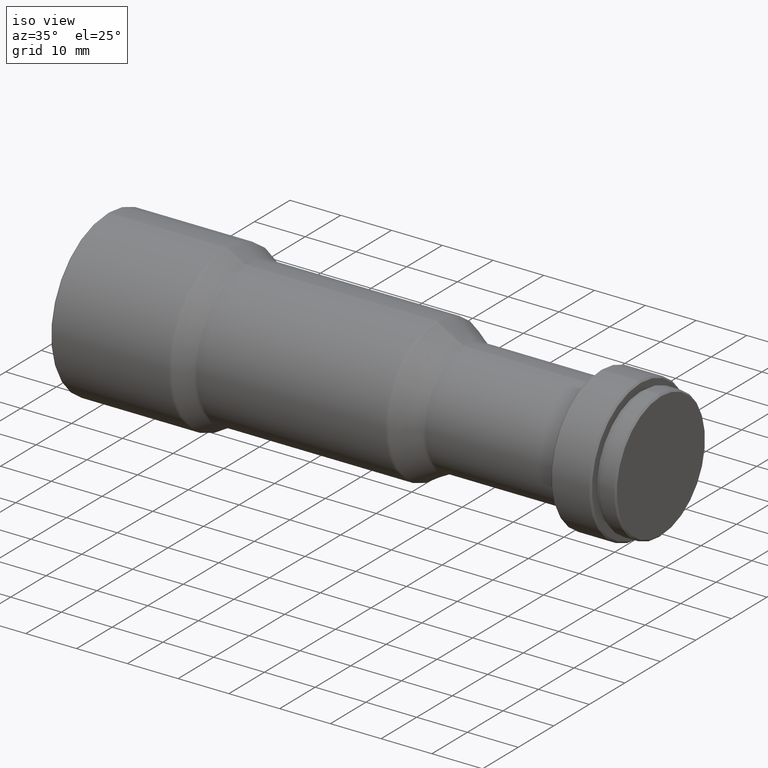
[diagram: clean part render]
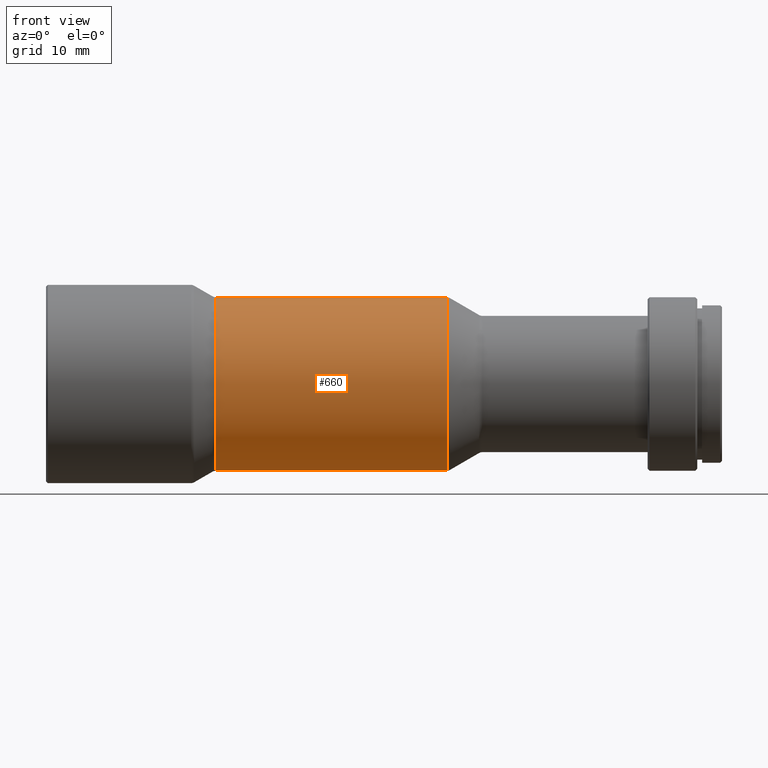
[diagram: tour spotlight — one face highlighted and labeled with its STEP entity id]
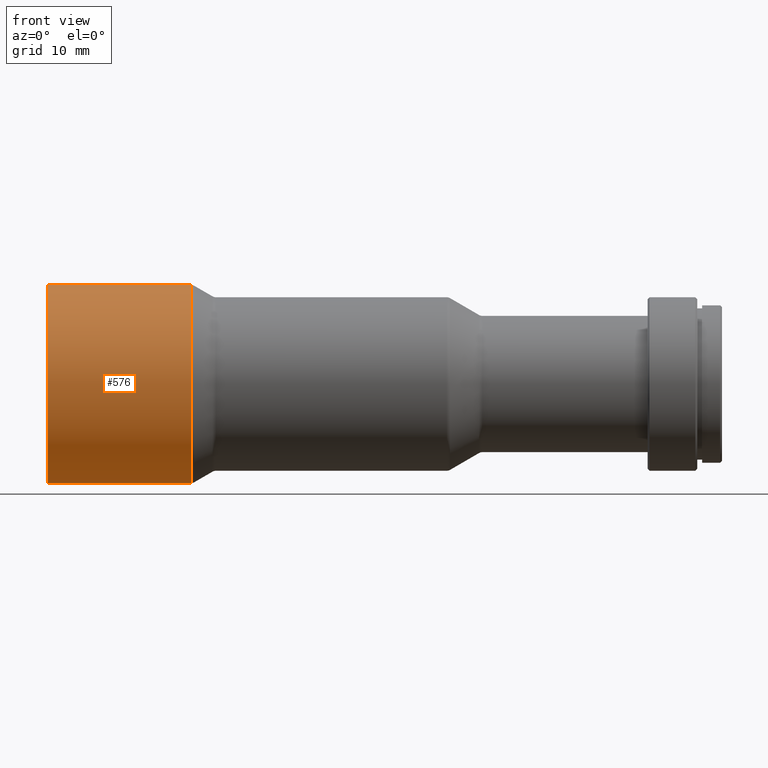
[diagram: tour spotlight — one face highlighted and labeled with its STEP entity id]
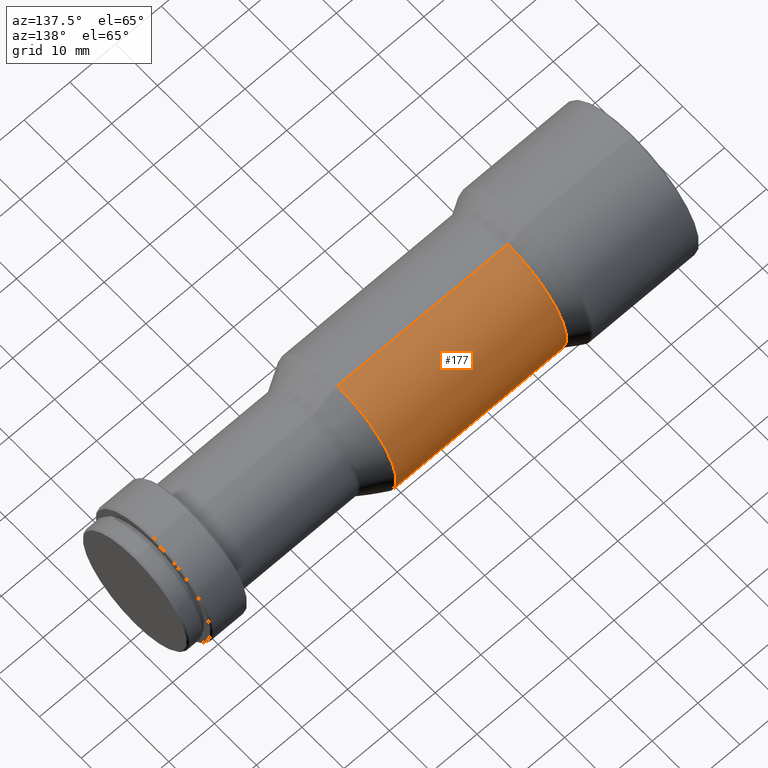
[diagram: tour spotlight — one face highlighted and labeled with its STEP entity id]
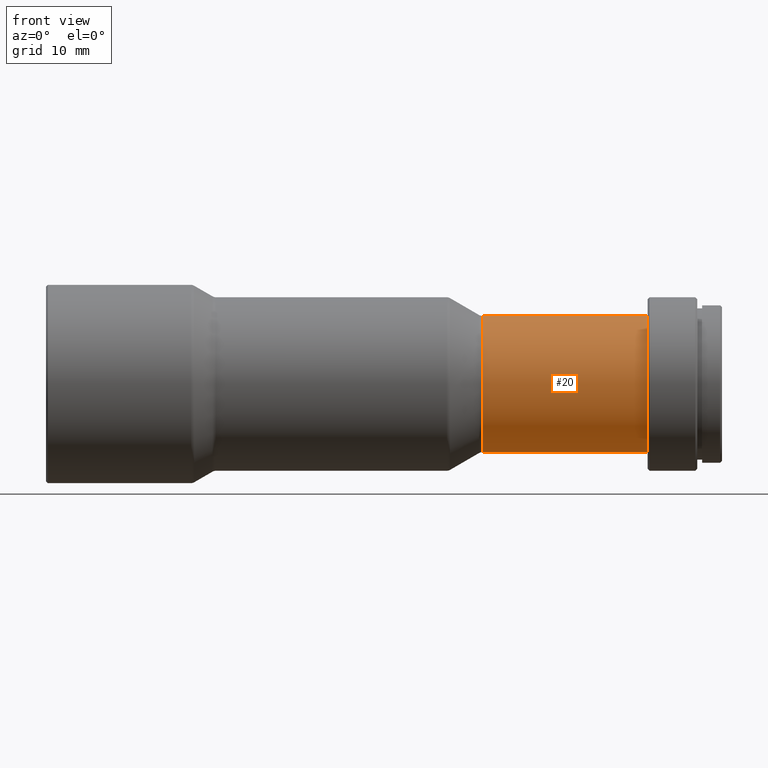
[diagram: tour spotlight — one face highlighted and labeled with its STEP entity id]
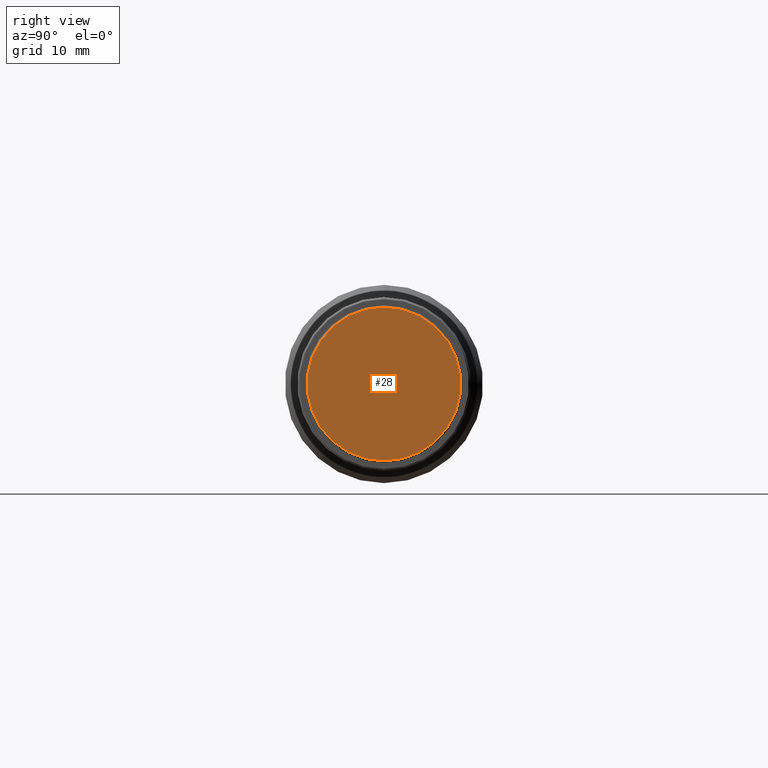
[diagram: tour spotlight — one face highlighted and labeled with its STEP entity id]
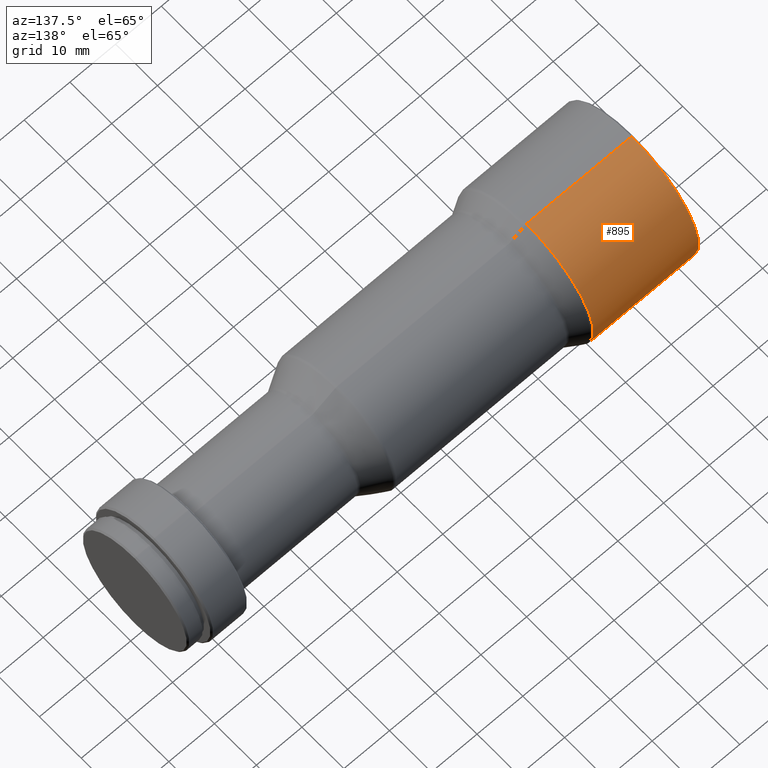
[diagram: tour spotlight — one face highlighted and labeled with its STEP entity id]
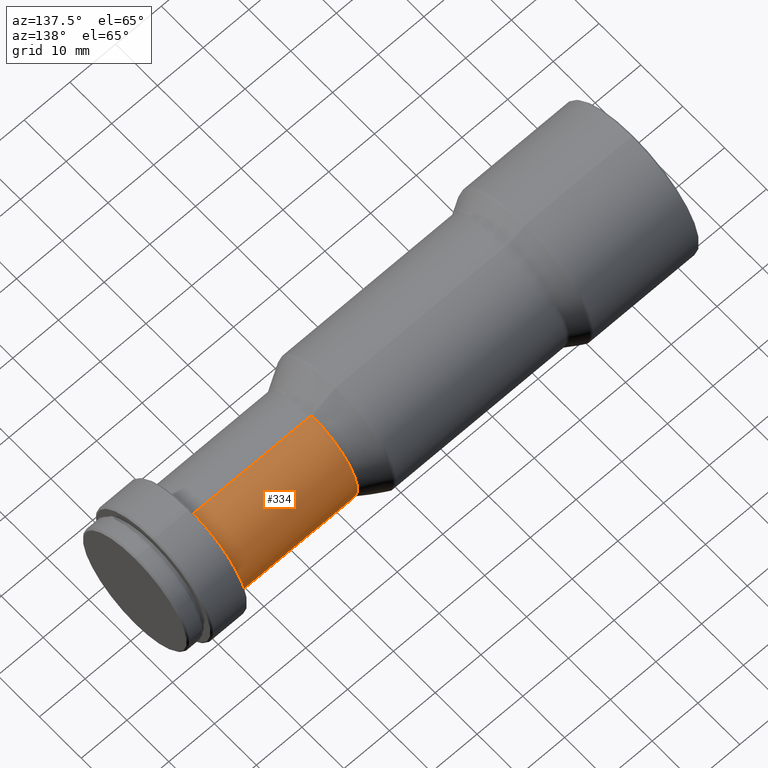
[diagram: tour spotlight — one face highlighted and labeled with its STEP entity id]
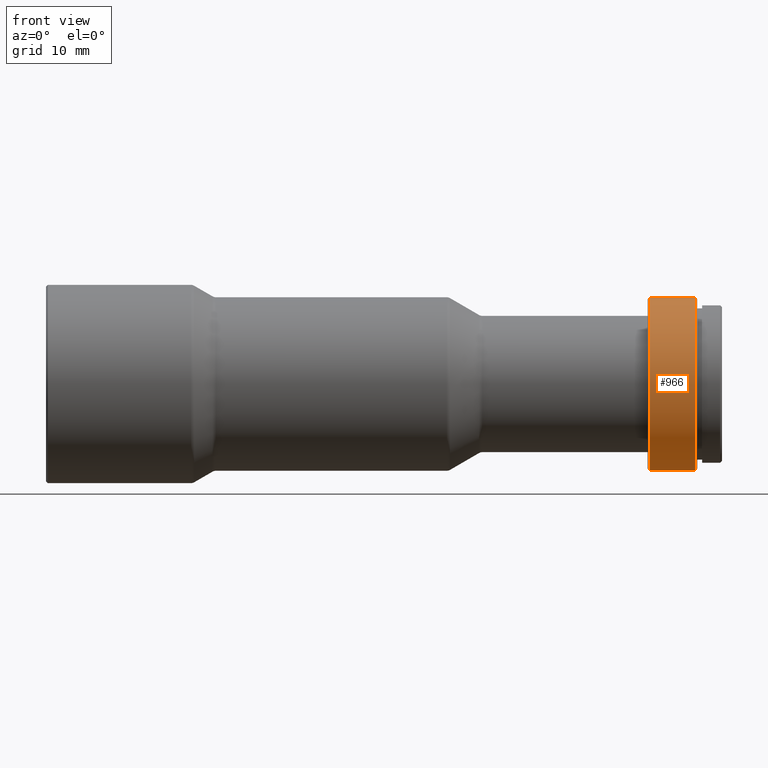
[diagram: tour spotlight — one face highlighted and labeled with its STEP entity id]
A machine part: a face-by-face anatomy tour. The part has 37 B-rep faces; the first image is the clean iso view, then the 8 largest visible faces are spotlighted one at a time (largest first), each with its STEP entity span.

Face 1 — front view, entity #660. In plain terms, the highlighted cylindrical surface (partial cylindrical patch) has radius 14 mm, axis along (-1, -0, -0).
Definition (entity closure, byte-faithful):
#17 = AXIS2_PLACEMENT_3D ( 'NONE', #161, #253, #811 ) ;
#41 = ORIENTED_EDGE ( 'NONE', *, *, #319, .T. ) ;
#42 = CYLINDRICAL_SURFACE ( 'NONE', #796, 14.00000000000000200 ) ;
#87 = CARTESIAN_POINT ( 'NONE',  ( 64.70000000000000300, 0.0000000000000000000, 14.00000000000000000 ) ) ;
#109 = EDGE_CURVE ( 'NONE', #353, #795, #630, .T. ) ;
#140 = CARTESIAN_POINT ( 'NONE',  ( 27.39999999999999900, 1.722709096827417100E-015, -14.00000000000000200 ) ) ;
#157 = CARTESIAN_POINT ( 'NONE',  ( 0.0000000000000000000, 1.714505518806294800E-015, -14.00000000000000200 ) ) ;
#161 = CARTESIAN_POINT ( 'NONE',  ( 27.39999999999999900, 0.0000000000000000000, 0.0000000000000000000 ) ) ;
#171 = VERTEX_POINT ( 'NONE', #140 ) ;
#197 = EDGE_LOOP ( 'NONE', ( #235, #330, #41, #723 ) ) ;
#232 = DIRECTION ( 'NONE',  ( 0.0000000000000000000, 0.0000000000000000000, 1.000000000000000000 ) ) ;
#235 = ORIENTED_EDGE ( 'NONE', *, *, #592, .F. ) ;
#253 = DIRECTION ( 'NONE',  ( -1.000000000000000000, -0.0000000000000000000, -0.0000000000000000000 ) ) ;
#255 = CARTESIAN_POINT ( 'NONE',  ( 64.70000000000000300, 0.0000000000000000000, 0.0000000000000000000 ) ) ;
#257 = DIRECTION ( 'NONE',  ( -1.000000000000000000, -0.0000000000000000000, -0.0000000000000000000 ) ) ;
#319 = EDGE_CURVE ( 'NONE', #795, #650, #762, .T. ) ;
#330 = ORIENTED_EDGE ( 'NONE', *, *, #109, .T. ) ;
#353 = VERTEX_POINT ( 'NONE', #831 ) ;
#471 = AXIS2_PLACEMENT_3D ( 'NONE', #255, #954, #569 ) ;
#483 = CIRCLE ( 'NONE', #17, 14.00000000000000200 ) ;
#510 = CARTESIAN_POINT ( 'NONE',  ( 0.0000000000000000000, 0.0000000000000000000, 14.00000000000000200 ) ) ;
#549 = VECTOR ( 'NONE', #257, 1000.000000000000000 ) ;
#569 = DIRECTION ( 'NONE',  ( 0.0000000000000000000, 0.0000000000000000000, 1.000000000000000000 ) ) ;
#592 = EDGE_CURVE ( 'NONE', #353, #171, #887, .T. ) ;
#629 = DIRECTION ( 'NONE',  ( -1.000000000000000000, -0.0000000000000000000, -0.0000000000000000000 ) ) ;
#630 = CIRCLE ( 'NONE', #471, 14.00000000000000000 ) ;
#637 = CARTESIAN_POINT ( 'NONE',  ( 27.39999999999999900, 0.0000000000000000000, 14.00000000000000200 ) ) ;
#650 = VERTEX_POINT ( 'NONE', #637 ) ;
#660 = ADVANCED_FACE ( 'NONE', ( #953 ), #42, .T. ) ;
#714 = CARTESIAN_POINT ( 'NONE',  ( 0.0000000000000000000, 0.0000000000000000000, 0.0000000000000000000 ) ) ;
#723 = ORIENTED_EDGE ( 'NONE', *, *, #847, .F. ) ;
#762 = LINE ( 'NONE', #510, #549 ) ;
#795 = VERTEX_POINT ( 'NONE', #87 ) ;
#796 = AXIS2_PLACEMENT_3D ( 'NONE', #714, #629, #232 ) ;
#805 = DIRECTION ( 'NONE',  ( -1.000000000000000000, -0.0000000000000000000, -0.0000000000000000000 ) ) ;
#811 = DIRECTION ( 'NONE',  ( 0.0000000000000000000, 0.0000000000000000000, 1.000000000000000000 ) ) ;
#831 = CARTESIAN_POINT ( 'NONE',  ( 64.70000000000000300, 1.714505518806294600E-015, -14.00000000000000000 ) ) ;
#847 = EDGE_CURVE ( 'NONE', #171, #650, #483, .T. ) ;
#887 = LINE ( 'NONE', #157, #1023 ) ;
#953 = FACE_OUTER_BOUND ( 'NONE', #197, .T. ) ;
#954 = DIRECTION ( 'NONE',  ( -1.000000000000000000, -0.0000000000000000000, -0.0000000000000000000 ) ) ;
#1023 = VECTOR ( 'NONE', #805, 1000.000000000000000 ) ;

Face 2 — front view, entity #576. In plain terms, the highlighted cylindrical surface (partial cylindrical patch) has radius 16 mm, axis along (-1, -0, -0).
Definition (entity closure, byte-faithful):
#54 = VERTEX_POINT ( 'NONE', #116 ) ;
#99 = AXIS2_PLACEMENT_3D ( 'NONE', #940, #873, #304 ) ;
#111 = EDGE_CURVE ( 'NONE', #843, #821, #424, .T. ) ;
#116 = CARTESIAN_POINT ( 'NONE',  ( 23.39999999999999900, 0.0000000000000000000, 16.00000000000000000 ) ) ;
#179 = DIRECTION ( 'NONE',  ( 0.0000000000000000000, 0.0000000000000000000, 1.000000000000000000 ) ) ;
#191 = VECTOR ( 'NONE', #387, 1000.000000000000000 ) ;
#276 = LINE ( 'NONE', #633, #191 ) ;
#304 = DIRECTION ( 'NONE',  ( 0.0000000000000000000, 0.0000000000000000000, 1.000000000000000000 ) ) ;
#365 = EDGE_CURVE ( 'NONE', #843, #54, #804, .T. ) ;
#387 = DIRECTION ( 'NONE',  ( -1.000000000000000000, -0.0000000000000000000, -0.0000000000000000000 ) ) ;
#394 = DIRECTION ( 'NONE',  ( -1.000000000000000000, -0.0000000000000000000, -0.0000000000000000000 ) ) ;
#419 = DIRECTION ( 'NONE',  ( -1.000000000000000000, -0.0000000000000000000, -0.0000000000000000000 ) ) ;
#424 = LINE ( 'NONE', #891, #835 ) ;
#448 = CYLINDRICAL_SURFACE ( 'NONE', #99, 16.00000000000000000 ) ;
#514 = CIRCLE ( 'NONE', #523, 16.00000000000000000 ) ;
#523 = AXIS2_PLACEMENT_3D ( 'NONE', #622, #394, #1011 ) ;
#545 = ORIENTED_EDGE ( 'NONE', *, *, #111, .F. ) ;
#551 = EDGE_CURVE ( 'NONE', #821, #562, #514, .T. ) ;
#558 = CARTESIAN_POINT ( 'NONE',  ( 23.39999999999999900, 1.959434878635765100E-015, -16.00000000000000000 ) ) ;
#562 = VERTEX_POINT ( 'NONE', #699 ) ;
#576 = ADVANCED_FACE ( 'NONE', ( #828 ), #448, .T. ) ;
#583 = CARTESIAN_POINT ( 'NONE',  ( 23.39999999999999900, 0.0000000000000000000, 0.0000000000000000000 ) ) ;
#590 = DIRECTION ( 'NONE',  ( -1.000000000000000000, -0.0000000000000000000, -0.0000000000000000000 ) ) ;
#622 = CARTESIAN_POINT ( 'NONE',  ( 0.2999999999999999900, 0.0000000000000000000, 0.0000000000000000000 ) ) ;
#633 = CARTESIAN_POINT ( 'NONE',  ( 0.0000000000000000000, 0.0000000000000000000, 16.00000000000000000 ) ) ;
#640 = CARTESIAN_POINT ( 'NONE',  ( 0.2999999999999999900, 0.0000000000000000000, -16.00000000000000000 ) ) ;
#666 = EDGE_CURVE ( 'NONE', #54, #562, #276, .T. ) ;
#682 = ORIENTED_EDGE ( 'NONE', *, *, #365, .T. ) ;
#699 = CARTESIAN_POINT ( 'NONE',  ( 0.2999999999999999900, 1.959434878635765100E-015, 16.00000000000000000 ) ) ;
#804 = CIRCLE ( 'NONE', #993, 16.00000000000000000 ) ;
#806 = ORIENTED_EDGE ( 'NONE', *, *, #666, .T. ) ;
#821 = VERTEX_POINT ( 'NONE', #640 ) ;
#828 = FACE_OUTER_BOUND ( 'NONE', #990, .T. ) ;
#835 = VECTOR ( 'NONE', #419, 1000.000000000000000 ) ;
#843 = VERTEX_POINT ( 'NONE', #558 ) ;
#873 = DIRECTION ( 'NONE',  ( -1.000000000000000000, -0.0000000000000000000, -0.0000000000000000000 ) ) ;
#889 = ORIENTED_EDGE ( 'NONE', *, *, #551, .F. ) ;
#891 = CARTESIAN_POINT ( 'NONE',  ( 0.0000000000000000000, 1.959434878635765100E-015, -16.00000000000000000 ) ) ;
#940 = CARTESIAN_POINT ( 'NONE',  ( 0.0000000000000000000, 0.0000000000000000000, 0.0000000000000000000 ) ) ;
#990 = EDGE_LOOP ( 'NONE', ( #545, #682, #806, #889 ) ) ;
#993 = AXIS2_PLACEMENT_3D ( 'NONE', #583, #590, #179 ) ;
#1011 = DIRECTION ( 'NONE',  ( 0.0000000000000000000, 0.0000000000000000000, 1.000000000000000000 ) ) ;

Face 3 — auxiliary view, entity #177. In plain terms, the highlighted cylindrical surface (partial cylindrical patch) has radius 14 mm, axis along (-1, -0, -0).
Definition (entity closure, byte-faithful):
#5 = ORIENTED_EDGE ( 'NONE', *, *, #374, .T. ) ;
#27 = CARTESIAN_POINT ( 'NONE',  ( 64.70000000000000300, 0.0000000000000000000, 0.0000000000000000000 ) ) ;
#70 = EDGE_CURVE ( 'NONE', #650, #171, #607, .T. ) ;
#87 = CARTESIAN_POINT ( 'NONE',  ( 64.70000000000000300, 0.0000000000000000000, 14.00000000000000000 ) ) ;
#133 = FACE_OUTER_BOUND ( 'NONE', #635, .T. ) ;
#140 = CARTESIAN_POINT ( 'NONE',  ( 27.39999999999999900, 1.722709096827417100E-015, -14.00000000000000200 ) ) ;
#157 = CARTESIAN_POINT ( 'NONE',  ( 0.0000000000000000000, 1.714505518806294800E-015, -14.00000000000000200 ) ) ;
#171 = VERTEX_POINT ( 'NONE', #140 ) ;
#177 = ADVANCED_FACE ( 'NONE', ( #133 ), #957, .T. ) ;
#205 = CARTESIAN_POINT ( 'NONE',  ( 27.39999999999999900, 0.0000000000000000000, 0.0000000000000000000 ) ) ;
#222 = AXIS2_PLACEMENT_3D ( 'NONE', #205, #676, #681 ) ;
#228 = CARTESIAN_POINT ( 'NONE',  ( 0.0000000000000000000, 0.0000000000000000000, 0.0000000000000000000 ) ) ;
#257 = DIRECTION ( 'NONE',  ( -1.000000000000000000, -0.0000000000000000000, -0.0000000000000000000 ) ) ;
#295 = CIRCLE ( 'NONE', #557, 14.00000000000000000 ) ;
#319 = EDGE_CURVE ( 'NONE', #795, #650, #762, .T. ) ;
#346 = ORIENTED_EDGE ( 'NONE', *, *, #70, .F. ) ;
#353 = VERTEX_POINT ( 'NONE', #831 ) ;
#374 = EDGE_CURVE ( 'NONE', #795, #353, #295, .T. ) ;
#510 = CARTESIAN_POINT ( 'NONE',  ( 0.0000000000000000000, 0.0000000000000000000, 14.00000000000000200 ) ) ;
#549 = VECTOR ( 'NONE', #257, 1000.000000000000000 ) ;
#557 = AXIS2_PLACEMENT_3D ( 'NONE', #27, #653, #663 ) ;
#592 = EDGE_CURVE ( 'NONE', #353, #171, #887, .T. ) ;
#607 = CIRCLE ( 'NONE', #222, 14.00000000000000200 ) ;
#635 = EDGE_LOOP ( 'NONE', ( #5, #916, #346, #665 ) ) ;
#637 = CARTESIAN_POINT ( 'NONE',  ( 27.39999999999999900, 0.0000000000000000000, 14.00000000000000200 ) ) ;
#650 = VERTEX_POINT ( 'NONE', #637 ) ;
#653 = DIRECTION ( 'NONE',  ( -1.000000000000000000, -0.0000000000000000000, -0.0000000000000000000 ) ) ;
#663 = DIRECTION ( 'NONE',  ( 0.0000000000000000000, 0.0000000000000000000, 1.000000000000000000 ) ) ;
#665 = ORIENTED_EDGE ( 'NONE', *, *, #319, .F. ) ;
#676 = DIRECTION ( 'NONE',  ( -1.000000000000000000, -0.0000000000000000000, -0.0000000000000000000 ) ) ;
#681 = DIRECTION ( 'NONE',  ( 0.0000000000000000000, 0.0000000000000000000, 1.000000000000000000 ) ) ;
#762 = LINE ( 'NONE', #510, #549 ) ;
#795 = VERTEX_POINT ( 'NONE', #87 ) ;
#805 = DIRECTION ( 'NONE',  ( -1.000000000000000000, -0.0000000000000000000, -0.0000000000000000000 ) ) ;
#831 = CARTESIAN_POINT ( 'NONE',  ( 64.70000000000000300, 1.714505518806294600E-015, -14.00000000000000000 ) ) ;
#887 = LINE ( 'NONE', #157, #1023 ) ;
#916 = ORIENTED_EDGE ( 'NONE', *, *, #592, .T. ) ;
#927 = AXIS2_PLACEMENT_3D ( 'NONE', #228, #938, #928 ) ;
#928 = DIRECTION ( 'NONE',  ( 0.0000000000000000000, 0.0000000000000000000, 1.000000000000000000 ) ) ;
#938 = DIRECTION ( 'NONE',  ( -1.000000000000000000, -0.0000000000000000000, -0.0000000000000000000 ) ) ;
#957 = CYLINDRICAL_SURFACE ( 'NONE', #927, 14.00000000000000200 ) ;
#1023 = VECTOR ( 'NONE', #805, 1000.000000000000000 ) ;

Face 4 — front view, entity #20. In plain terms, the highlighted cylindrical surface (partial cylindrical patch) has radius 11 mm, axis along (-1, -0, -0).
Definition (entity closure, byte-faithful):
#12 = CARTESIAN_POINT ( 'NONE',  ( 97.09999999999999400, 0.0000000000000000000, 11.00000000000000000 ) ) ;
#14 = EDGE_CURVE ( 'NONE', #404, #307, #269, .T. ) ;
#20 = ADVANCED_FACE ( 'NONE', ( #107 ), #351, .T. ) ;
#32 = DIRECTION ( 'NONE',  ( -1.000000000000000000, -0.0000000000000000000, -0.0000000000000000000 ) ) ;
#45 = AXIS2_PLACEMENT_3D ( 'NONE', #239, #68, #465 ) ;
#68 = DIRECTION ( 'NONE',  ( -1.000000000000000000, -0.0000000000000000000, -0.0000000000000000000 ) ) ;
#78 = ORIENTED_EDGE ( 'NONE', *, *, #692, .F. ) ;
#107 = FACE_OUTER_BOUND ( 'NONE', #259, .T. ) ;
#110 = DIRECTION ( 'NONE',  ( 0.0000000000000000000, 0.0000000000000000000, 1.000000000000000000 ) ) ;
#158 = CARTESIAN_POINT ( 'NONE',  ( 0.0000000000000000000, 1.347111479062088000E-015, -10.99999999999999600 ) ) ;
#165 = AXIS2_PLACEMENT_3D ( 'NONE', #575, #748, #110 ) ;
#175 = VECTOR ( 'NONE', #949, 1000.000000000000000 ) ;
#216 = VERTEX_POINT ( 'NONE', #293 ) ;
#239 = CARTESIAN_POINT ( 'NONE',  ( 70.40000000000000600, 0.0000000000000000000, 0.0000000000000000000 ) ) ;
#259 = EDGE_LOOP ( 'NONE', ( #78, #564, #855, #757 ) ) ;
#269 = CIRCLE ( 'NONE', #975, 11.00000000000000000 ) ;
#293 = CARTESIAN_POINT ( 'NONE',  ( 70.40000000000000600, 0.0000000000000000000, 10.99999999999999500 ) ) ;
#307 = VERTEX_POINT ( 'NONE', #12 ) ;
#351 = CYLINDRICAL_SURFACE ( 'NONE', #165, 10.99999999999999600 ) ;
#389 = LINE ( 'NONE', #158, #175 ) ;
#404 = VERTEX_POINT ( 'NONE', #827 ) ;
#449 = EDGE_CURVE ( 'NONE', #307, #216, #725, .T. ) ;
#465 = DIRECTION ( 'NONE',  ( 0.0000000000000000000, 0.0000000000000000000, 1.000000000000000000 ) ) ;
#509 = DIRECTION ( 'NONE',  ( 0.0000000000000000000, 0.0000000000000000000, 1.000000000000000000 ) ) ;
#515 = DIRECTION ( 'NONE',  ( -1.000000000000000000, -0.0000000000000000000, -0.0000000000000000000 ) ) ;
#534 = EDGE_CURVE ( 'NONE', #1009, #216, #852, .T. ) ;
#561 = CARTESIAN_POINT ( 'NONE',  ( 70.40000000000000600, 1.355405587503313500E-015, -10.99999999999999500 ) ) ;
#564 = ORIENTED_EDGE ( 'NONE', *, *, #14, .T. ) ;
#575 = CARTESIAN_POINT ( 'NONE',  ( 0.0000000000000000000, 0.0000000000000000000, 0.0000000000000000000 ) ) ;
#692 = EDGE_CURVE ( 'NONE', #404, #1009, #389, .T. ) ;
#725 = LINE ( 'NONE', #905, #864 ) ;
#744 = CARTESIAN_POINT ( 'NONE',  ( 97.09999999999999400, 0.0000000000000000000, 0.0000000000000000000 ) ) ;
#748 = DIRECTION ( 'NONE',  ( -1.000000000000000000, -0.0000000000000000000, -0.0000000000000000000 ) ) ;
#757 = ORIENTED_EDGE ( 'NONE', *, *, #534, .F. ) ;
#827 = CARTESIAN_POINT ( 'NONE',  ( 97.09999999999999400, 1.347111479062088400E-015, -10.99999999999999800 ) ) ;
#852 = CIRCLE ( 'NONE', #45, 10.99999999999999500 ) ;
#855 = ORIENTED_EDGE ( 'NONE', *, *, #449, .T. ) ;
#864 = VECTOR ( 'NONE', #515, 1000.000000000000000 ) ;
#905 = CARTESIAN_POINT ( 'NONE',  ( 0.0000000000000000000, 0.0000000000000000000, 10.99999999999999600 ) ) ;
#949 = DIRECTION ( 'NONE',  ( -1.000000000000000000, -0.0000000000000000000, -0.0000000000000000000 ) ) ;
#975 = AXIS2_PLACEMENT_3D ( 'NONE', #744, #32, #509 ) ;
#1009 = VERTEX_POINT ( 'NONE', #561 ) ;

Face 5 — right view, entity #28. In plain terms, the highlighted planar face has unit normal (-1, 0, -0).
Definition (entity closure, byte-faithful):
#28 = ADVANCED_FACE ( 'NONE', ( #141 ), #600, .F. ) ;
#103 = CARTESIAN_POINT ( 'NONE',  ( 109.1000000000000100, 0.0000000000000000000, 0.0000000000000000000 ) ) ;
#108 = DIRECTION ( 'NONE',  ( -1.000000000000000000, -0.0000000000000000000, -0.0000000000000000000 ) ) ;
#141 = FACE_OUTER_BOUND ( 'NONE', #596, .T. ) ;
#200 = CARTESIAN_POINT ( 'NONE',  ( 109.1000000000000100, 12.40000000000000700, 0.0000000000000000000 ) ) ;
#256 = ORIENTED_EDGE ( 'NONE', *, *, #991, .F. ) ;
#321 = AXIS2_PLACEMENT_3D ( 'NONE', #200, #517, #440 ) ;
#343 = EDGE_CURVE ( 'NONE', #833, #939, #487, .T. ) ;
#401 = AXIS2_PLACEMENT_3D ( 'NONE', #103, #108, #746 ) ;
#427 = CIRCLE ( 'NONE', #712, 12.40000000000000700 ) ;
#440 = DIRECTION ( 'NONE',  ( -0.0000000000000000000, 0.0000000000000000000, 1.000000000000000000 ) ) ;
#487 = CIRCLE ( 'NONE', #401, 12.40000000000000700 ) ;
#517 = DIRECTION ( 'NONE',  ( -1.000000000000000000, 0.0000000000000000000, -0.0000000000000000000 ) ) ;
#544 = DIRECTION ( 'NONE',  ( 0.0000000000000000000, 0.0000000000000000000, 1.000000000000000000 ) ) ;
#596 = EDGE_LOOP ( 'NONE', ( #256, #683 ) ) ;
#600 = PLANE ( 'NONE',  #321 ) ;
#683 = ORIENTED_EDGE ( 'NONE', *, *, #343, .F. ) ;
#712 = AXIS2_PLACEMENT_3D ( 'NONE', #854, #1000, #544 ) ;
#721 = CARTESIAN_POINT ( 'NONE',  ( 109.1000000000000100, 1.536931732929929200E-015, -12.40000000000000700 ) ) ;
#746 = DIRECTION ( 'NONE',  ( 0.0000000000000000000, 0.0000000000000000000, 1.000000000000000000 ) ) ;
#833 = VERTEX_POINT ( 'NONE', #721 ) ;
#854 = CARTESIAN_POINT ( 'NONE',  ( 109.1000000000000100, 0.0000000000000000000, 0.0000000000000000000 ) ) ;
#939 = VERTEX_POINT ( 'NONE', #1002 ) ;
#991 = EDGE_CURVE ( 'NONE', #939, #833, #427, .T. ) ;
#1000 = DIRECTION ( 'NONE',  ( -1.000000000000000000, -0.0000000000000000000, -0.0000000000000000000 ) ) ;
#1002 = CARTESIAN_POINT ( 'NONE',  ( 109.1000000000000100, 0.0000000000000000000, 12.40000000000000700 ) ) ;

Face 6 — auxiliary view, entity #895. In plain terms, the highlighted cylindrical surface (partial cylindrical patch) has radius 16 mm, axis along (-1, -0, -0).
Definition (entity closure, byte-faithful):
#54 = VERTEX_POINT ( 'NONE', #116 ) ;
#79 = CARTESIAN_POINT ( 'NONE',  ( 23.39999999999999900, 0.0000000000000000000, 0.0000000000000000000 ) ) ;
#111 = EDGE_CURVE ( 'NONE', #843, #821, #424, .T. ) ;
#116 = CARTESIAN_POINT ( 'NONE',  ( 23.39999999999999900, 0.0000000000000000000, 16.00000000000000000 ) ) ;
#191 = VECTOR ( 'NONE', #387, 1000.000000000000000 ) ;
#204 = ORIENTED_EDGE ( 'NONE', *, *, #666, .F. ) ;
#206 = EDGE_LOOP ( 'NONE', ( #942, #716, #983, #204 ) ) ;
#264 = CIRCLE ( 'NONE', #720, 16.00000000000000000 ) ;
#276 = LINE ( 'NONE', #633, #191 ) ;
#291 = FACE_OUTER_BOUND ( 'NONE', #206, .T. ) ;
#387 = DIRECTION ( 'NONE',  ( -1.000000000000000000, -0.0000000000000000000, -0.0000000000000000000 ) ) ;
#419 = DIRECTION ( 'NONE',  ( -1.000000000000000000, -0.0000000000000000000, -0.0000000000000000000 ) ) ;
#424 = LINE ( 'NONE', #891, #835 ) ;
#460 = CARTESIAN_POINT ( 'NONE',  ( 0.2999999999999999900, 0.0000000000000000000, 0.0000000000000000000 ) ) ;
#462 = DIRECTION ( 'NONE',  ( -1.000000000000000000, -0.0000000000000000000, -0.0000000000000000000 ) ) ;
#505 = EDGE_CURVE ( 'NONE', #562, #821, #776, .T. ) ;
#525 = EDGE_CURVE ( 'NONE', #54, #843, #264, .T. ) ;
#542 = DIRECTION ( 'NONE',  ( 0.0000000000000000000, 0.0000000000000000000, 1.000000000000000000 ) ) ;
#558 = CARTESIAN_POINT ( 'NONE',  ( 23.39999999999999900, 1.959434878635765100E-015, -16.00000000000000000 ) ) ;
#562 = VERTEX_POINT ( 'NONE', #699 ) ;
#616 = DIRECTION ( 'NONE',  ( 0.0000000000000000000, 0.0000000000000000000, 1.000000000000000000 ) ) ;
#633 = CARTESIAN_POINT ( 'NONE',  ( 0.0000000000000000000, 0.0000000000000000000, 16.00000000000000000 ) ) ;
#640 = CARTESIAN_POINT ( 'NONE',  ( 0.2999999999999999900, 0.0000000000000000000, -16.00000000000000000 ) ) ;
#656 = AXIS2_PLACEMENT_3D ( 'NONE', #935, #462, #616 ) ;
#666 = EDGE_CURVE ( 'NONE', #54, #562, #276, .T. ) ;
#699 = CARTESIAN_POINT ( 'NONE',  ( 0.2999999999999999900, 1.959434878635765100E-015, 16.00000000000000000 ) ) ;
#703 = DIRECTION ( 'NONE',  ( -1.000000000000000000, -0.0000000000000000000, -0.0000000000000000000 ) ) ;
#707 = DIRECTION ( 'NONE',  ( 0.0000000000000000000, 0.0000000000000000000, 1.000000000000000000 ) ) ;
#716 = ORIENTED_EDGE ( 'NONE', *, *, #111, .T. ) ;
#720 = AXIS2_PLACEMENT_3D ( 'NONE', #79, #866, #542 ) ;
#735 = CYLINDRICAL_SURFACE ( 'NONE', #656, 16.00000000000000000 ) ;
#739 = AXIS2_PLACEMENT_3D ( 'NONE', #460, #703, #707 ) ;
#776 = CIRCLE ( 'NONE', #739, 16.00000000000000000 ) ;
#821 = VERTEX_POINT ( 'NONE', #640 ) ;
#835 = VECTOR ( 'NONE', #419, 1000.000000000000000 ) ;
#843 = VERTEX_POINT ( 'NONE', #558 ) ;
#866 = DIRECTION ( 'NONE',  ( -1.000000000000000000, -0.0000000000000000000, -0.0000000000000000000 ) ) ;
#891 = CARTESIAN_POINT ( 'NONE',  ( 0.0000000000000000000, 1.959434878635765100E-015, -16.00000000000000000 ) ) ;
#895 = ADVANCED_FACE ( 'NONE', ( #291 ), #735, .T. ) ;
#935 = CARTESIAN_POINT ( 'NONE',  ( 0.0000000000000000000, 0.0000000000000000000, 0.0000000000000000000 ) ) ;
#942 = ORIENTED_EDGE ( 'NONE', *, *, #525, .T. ) ;
#983 = ORIENTED_EDGE ( 'NONE', *, *, #505, .F. ) ;

Face 7 — auxiliary view, entity #334. In plain terms, the highlighted cylindrical surface (partial cylindrical patch) has radius 11 mm, axis along (-1, -0, -0).
Definition (entity closure, byte-faithful):
#7 = DIRECTION ( 'NONE',  ( -1.000000000000000000, -0.0000000000000000000, -0.0000000000000000000 ) ) ;
#12 = CARTESIAN_POINT ( 'NONE',  ( 97.09999999999999400, 0.0000000000000000000, 11.00000000000000000 ) ) ;
#18 = DIRECTION ( 'NONE',  ( -1.000000000000000000, -0.0000000000000000000, -0.0000000000000000000 ) ) ;
#30 = ORIENTED_EDGE ( 'NONE', *, *, #102, .F. ) ;
#102 = EDGE_CURVE ( 'NONE', #216, #1009, #1004, .T. ) ;
#158 = CARTESIAN_POINT ( 'NONE',  ( 0.0000000000000000000, 1.347111479062088000E-015, -10.99999999999999600 ) ) ;
#163 = EDGE_CURVE ( 'NONE', #307, #404, #581, .T. ) ;
#175 = VECTOR ( 'NONE', #949, 1000.000000000000000 ) ;
#216 = VERTEX_POINT ( 'NONE', #293 ) ;
#280 = DIRECTION ( 'NONE',  ( -1.000000000000000000, -0.0000000000000000000, -0.0000000000000000000 ) ) ;
#293 = CARTESIAN_POINT ( 'NONE',  ( 70.40000000000000600, 0.0000000000000000000, 10.99999999999999500 ) ) ;
#307 = VERTEX_POINT ( 'NONE', #12 ) ;
#328 = CARTESIAN_POINT ( 'NONE',  ( 0.0000000000000000000, 0.0000000000000000000, 0.0000000000000000000 ) ) ;
#333 = ORIENTED_EDGE ( 'NONE', *, *, #163, .T. ) ;
#334 = ADVANCED_FACE ( 'NONE', ( #358 ), #675, .T. ) ;
#354 = DIRECTION ( 'NONE',  ( 0.0000000000000000000, 0.0000000000000000000, 1.000000000000000000 ) ) ;
#358 = FACE_OUTER_BOUND ( 'NONE', #428, .T. ) ;
#389 = LINE ( 'NONE', #158, #175 ) ;
#404 = VERTEX_POINT ( 'NONE', #827 ) ;
#414 = CARTESIAN_POINT ( 'NONE',  ( 70.40000000000000600, 0.0000000000000000000, 0.0000000000000000000 ) ) ;
#428 = EDGE_LOOP ( 'NONE', ( #333, #524, #30, #658 ) ) ;
#449 = EDGE_CURVE ( 'NONE', #307, #216, #725, .T. ) ;
#489 = DIRECTION ( 'NONE',  ( 0.0000000000000000000, 0.0000000000000000000, 1.000000000000000000 ) ) ;
#491 = AXIS2_PLACEMENT_3D ( 'NONE', #328, #18, #736 ) ;
#515 = DIRECTION ( 'NONE',  ( -1.000000000000000000, -0.0000000000000000000, -0.0000000000000000000 ) ) ;
#524 = ORIENTED_EDGE ( 'NONE', *, *, #692, .T. ) ;
#561 = CARTESIAN_POINT ( 'NONE',  ( 70.40000000000000600, 1.355405587503313500E-015, -10.99999999999999500 ) ) ;
#581 = CIRCLE ( 'NONE', #649, 11.00000000000000000 ) ;
#649 = AXIS2_PLACEMENT_3D ( 'NONE', #768, #280, #354 ) ;
#658 = ORIENTED_EDGE ( 'NONE', *, *, #449, .F. ) ;
#675 = CYLINDRICAL_SURFACE ( 'NONE', #491, 10.99999999999999600 ) ;
#692 = EDGE_CURVE ( 'NONE', #404, #1009, #389, .T. ) ;
#725 = LINE ( 'NONE', #905, #864 ) ;
#736 = DIRECTION ( 'NONE',  ( 0.0000000000000000000, 0.0000000000000000000, 1.000000000000000000 ) ) ;
#768 = CARTESIAN_POINT ( 'NONE',  ( 97.09999999999999400, 0.0000000000000000000, 0.0000000000000000000 ) ) ;
#827 = CARTESIAN_POINT ( 'NONE',  ( 97.09999999999999400, 1.347111479062088400E-015, -10.99999999999999800 ) ) ;
#864 = VECTOR ( 'NONE', #515, 1000.000000000000000 ) ;
#867 = AXIS2_PLACEMENT_3D ( 'NONE', #414, #7, #489 ) ;
#905 = CARTESIAN_POINT ( 'NONE',  ( 0.0000000000000000000, 0.0000000000000000000, 10.99999999999999600 ) ) ;
#949 = DIRECTION ( 'NONE',  ( -1.000000000000000000, -0.0000000000000000000, -0.0000000000000000000 ) ) ;
#1004 = CIRCLE ( 'NONE', #867, 10.99999999999999500 ) ;
#1009 = VERTEX_POINT ( 'NONE', #561 ) ;

Face 8 — front view, entity #966. In plain terms, the highlighted cylindrical surface (partial cylindrical patch) has radius 14 mm, axis along (-1, -0, -0).
Definition (entity closure, byte-faithful):
#4 = CARTESIAN_POINT ( 'NONE',  ( 104.8000000000000100, 1.714505518806294600E-015, -14.00000000000000000 ) ) ;
#16 = CARTESIAN_POINT ( 'NONE',  ( 97.39999999999999100, 0.0000000000000000000, -14.00000000000000000 ) ) ;
#36 = CARTESIAN_POINT ( 'NONE',  ( 0.0000000000000000000, 0.0000000000000000000, 14.00000000000000000 ) ) ;
#46 = DIRECTION ( 'NONE',  ( 0.0000000000000000000, 0.0000000000000000000, 1.000000000000000000 ) ) ;
#50 = ORIENTED_EDGE ( 'NONE', *, *, #474, .T. ) ;
#53 = DIRECTION ( 'NONE',  ( -1.000000000000000000, -0.0000000000000000000, -0.0000000000000000000 ) ) ;
#114 = VERTEX_POINT ( 'NONE', #648 ) ;
#129 = EDGE_CURVE ( 'NONE', #287, #997, #595, .T. ) ;
#135 = FACE_OUTER_BOUND ( 'NONE', #731, .T. ) ;
#148 = CYLINDRICAL_SURFACE ( 'NONE', #803, 14.00000000000000000 ) ;
#184 = ORIENTED_EDGE ( 'NONE', *, *, #129, .F. ) ;
#185 = EDGE_CURVE ( 'NONE', #856, #287, #380, .T. ) ;
#199 = DIRECTION ( 'NONE',  ( -1.000000000000000000, -0.0000000000000000000, -0.0000000000000000000 ) ) ;
#258 = AXIS2_PLACEMENT_3D ( 'NONE', #360, #756, #46 ) ;
#277 = CARTESIAN_POINT ( 'NONE',  ( 104.8000000000000100, 0.0000000000000000000, 0.0000000000000000000 ) ) ;
#284 = EDGE_CURVE ( 'NONE', #114, #997, #910, .T. ) ;
#287 = VERTEX_POINT ( 'NONE', #16 ) ;
#298 = DIRECTION ( 'NONE',  ( -1.000000000000000000, -0.0000000000000000000, -0.0000000000000000000 ) ) ;
#301 = CARTESIAN_POINT ( 'NONE',  ( 0.0000000000000000000, 1.714505518806294600E-015, -14.00000000000000000 ) ) ;
#360 = CARTESIAN_POINT ( 'NONE',  ( 97.39999999999999100, 0.0000000000000000000, 0.0000000000000000000 ) ) ;
#366 = CARTESIAN_POINT ( 'NONE',  ( 0.0000000000000000000, 0.0000000000000000000, 0.0000000000000000000 ) ) ;
#380 = LINE ( 'NONE', #301, #902 ) ;
#453 = CARTESIAN_POINT ( 'NONE',  ( 97.39999999999999100, 1.714505518806294600E-015, 14.00000000000000000 ) ) ;
#474 = EDGE_CURVE ( 'NONE', #856, #114, #998, .T. ) ;
#492 = VECTOR ( 'NONE', #988, 1000.000000000000000 ) ;
#519 = ORIENTED_EDGE ( 'NONE', *, *, #284, .T. ) ;
#543 = AXIS2_PLACEMENT_3D ( 'NONE', #277, #199, #751 ) ;
#595 = CIRCLE ( 'NONE', #258, 14.00000000000000000 ) ;
#620 = DIRECTION ( 'NONE',  ( 0.0000000000000000000, 0.0000000000000000000, 1.000000000000000000 ) ) ;
#648 = CARTESIAN_POINT ( 'NONE',  ( 104.8000000000000100, 0.0000000000000000000, 14.00000000000000000 ) ) ;
#731 = EDGE_LOOP ( 'NONE', ( #759, #50, #519, #184 ) ) ;
#751 = DIRECTION ( 'NONE',  ( 0.0000000000000000000, 0.0000000000000000000, 1.000000000000000000 ) ) ;
#756 = DIRECTION ( 'NONE',  ( -1.000000000000000000, -0.0000000000000000000, -0.0000000000000000000 ) ) ;
#759 = ORIENTED_EDGE ( 'NONE', *, *, #185, .F. ) ;
#803 = AXIS2_PLACEMENT_3D ( 'NONE', #366, #53, #620 ) ;
#856 = VERTEX_POINT ( 'NONE', #4 ) ;
#902 = VECTOR ( 'NONE', #298, 1000.000000000000000 ) ;
#910 = LINE ( 'NONE', #36, #492 ) ;
#966 = ADVANCED_FACE ( 'NONE', ( #135 ), #148, .T. ) ;
#988 = DIRECTION ( 'NONE',  ( -1.000000000000000000, -0.0000000000000000000, -0.0000000000000000000 ) ) ;
#997 = VERTEX_POINT ( 'NONE', #453 ) ;
#998 = CIRCLE ( 'NONE', #543, 14.00000000000000000 ) ;